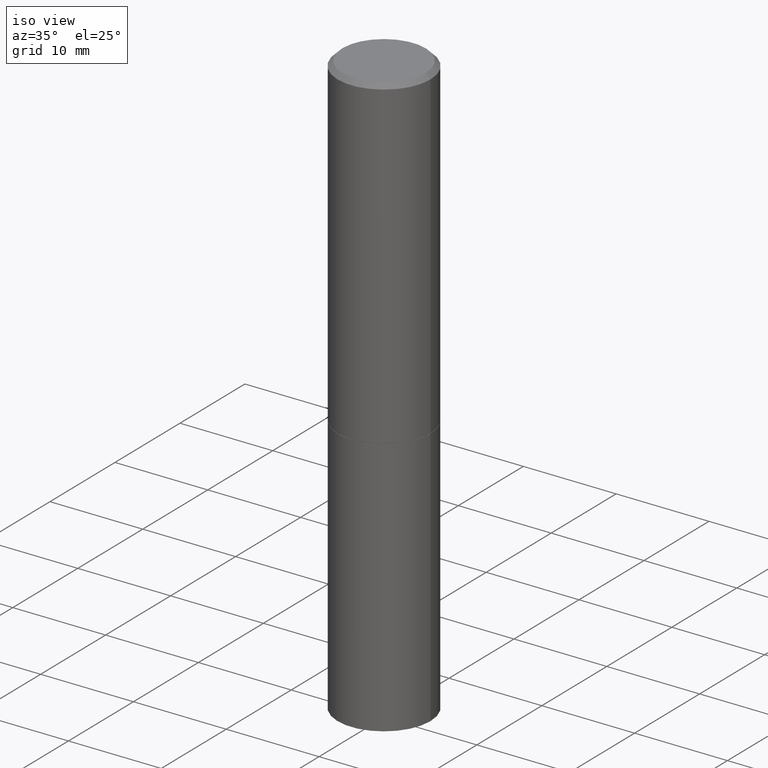
[diagram: clean part render]
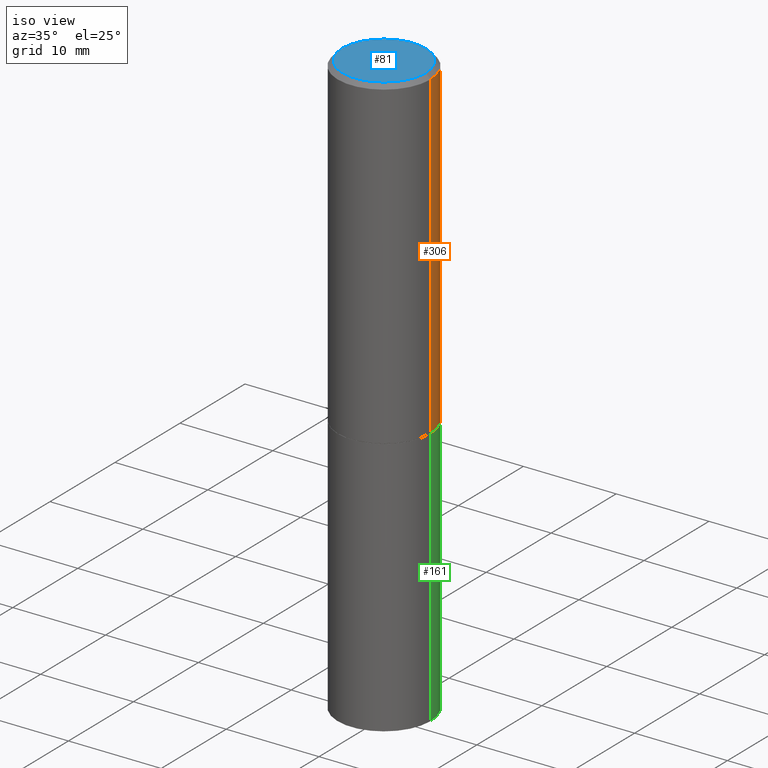
[diagram: same view with three faces highlighted in distinct colors, each labeled with its STEP entity id]
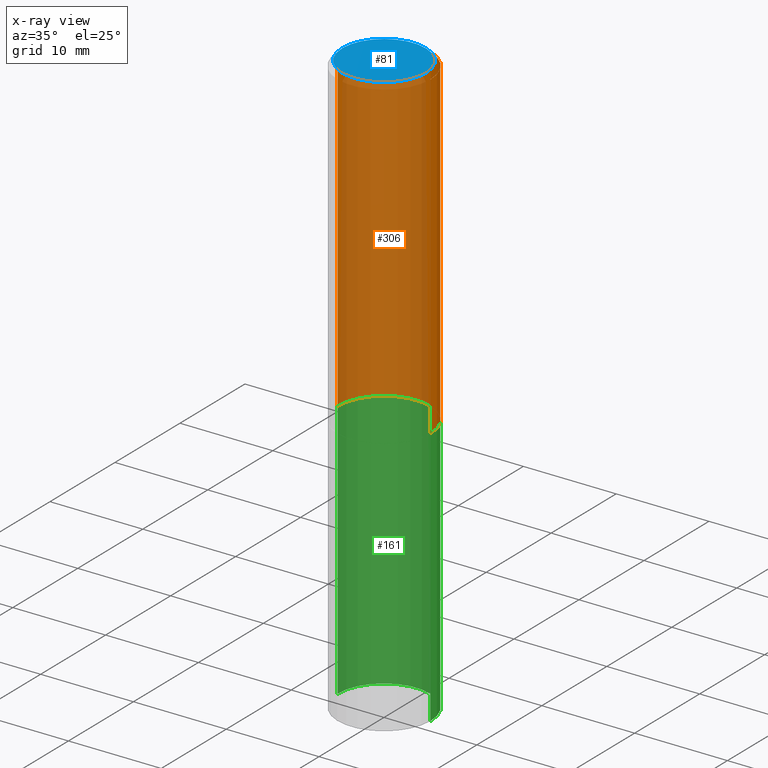
[diagram: x-ray of the same camera — body ghosted, the three highlighted faces saturated]
A machine part, iso view with three faces highlighted in distinct colors.
The next image is the same camera in x-ray (body ghosted, the three faces saturated) — at least one of them is partly hidden behind the body in this view.
Their STEP definitions:

[orange] entity #306 — the highlighted cylindrical surface (partial cylindrical patch) has radius 5 mm, axis along (-0, 0, 1).
#9 = CARTESIAN_POINT ( 'NONE',  ( 4.890937612370283668E-31, -6.982962677686305168E-17, -0.02000000000000004205 ) ) ;
#14 = VECTOR ( 'NONE', #312, 39.37007874015748143 ) ;
#31 = DIRECTION ( 'NONE',  ( -2.445468806185136597E-29, 3.491481338843145583E-15, 1.000000000000000000 ) ) ;
#43 = EDGE_LOOP ( 'NONE', ( #177, #55, #242, #354 ) ) ;
#48 = DIRECTION ( 'NONE',  ( 1.000000000000000000, -6.982962677686266711E-15, 0.000000000000000000 ) ) ;
#54 = CIRCLE ( 'NONE', #109, 0.1968499999999999417 ) ;
#55 = ORIENTED_EDGE ( 'NONE', *, *, #301, .T. ) ;
#67 = EDGE_CURVE ( 'NONE', #298, #74, #54, .T. ) ;
#69 = VECTOR ( 'NONE', #72, 39.37007874015748143 ) ;
#72 = DIRECTION ( 'NONE',  ( -2.445468806185136877E-29, 3.491481338843145188E-15, 1.000000000000000000 ) ) ;
#74 = VERTEX_POINT ( 'NONE', #352 ) ;
#109 = AXIS2_PLACEMENT_3D ( 'NONE', #275, #131, #350 ) ;
#118 = DIRECTION ( 'NONE',  ( -2.445468806185136597E-29, 3.491481338843145583E-15, 1.000000000000000000 ) ) ;
#131 = DIRECTION ( 'NONE',  ( -2.445468806185136597E-29, 3.491481338843145583E-15, 1.000000000000000000 ) ) ;
#135 = EDGE_CURVE ( 'NONE', #192, #332, #168, .T. ) ;
#146 = EDGE_CURVE ( 'NONE', #298, #192, #283, .T. ) ;
#168 = CIRCLE ( 'NONE', #185, 0.1968499999999997752 ) ;
#171 = FACE_OUTER_BOUND ( 'NONE', #43, .T. ) ;
#177 = ORIENTED_EDGE ( 'NONE', *, *, #67, .T. ) ;
#178 = CARTESIAN_POINT ( 'NONE',  ( 0.1968499999999998307, -1.374596203102540425E-15, 9.598753983154291049E-30 ) ) ;
#185 = AXIS2_PLACEMENT_3D ( 'NONE', #9, #31, #48 ) ;
#192 = VERTEX_POINT ( 'NONE', #313 ) ;
#201 = AXIS2_PLACEMENT_3D ( 'NONE', #365, #118, #263 ) ;
#242 = ORIENTED_EDGE ( 'NONE', *, *, #135, .F. ) ;
#243 = CARTESIAN_POINT ( 'NONE',  ( -0.1968499999999998307, 1.398703375343756013E-15, -9.682923725166775270E-30 ) ) ;
#258 = CYLINDRICAL_SURFACE ( 'NONE', #201, 0.1968499999999998307 ) ;
#263 = DIRECTION ( 'NONE',  ( 1.000000000000000000, -6.982962677686266711E-15, 4.876176775795935793E-29 ) ) ;
#275 = CARTESIAN_POINT ( 'NONE',  ( 3.367165999236314681E-29, -4.807420655453126643E-15, -1.376900000000000013 ) ) ;
#283 = LINE ( 'NONE', #178, #69 ) ;
#286 = CARTESIAN_POINT ( 'NONE',  ( 0.1968499999999999417, -6.182016858555667463E-15, -1.376900000000000013 ) ) ;
#298 = VERTEX_POINT ( 'NONE', #286 ) ;
#301 = EDGE_CURVE ( 'NONE', #74, #332, #320, .T. ) ;
#306 = ADVANCED_FACE ( 'NONE', ( #171 ), #258, .T. ) ;
#312 = DIRECTION ( 'NONE',  ( -2.445468806185136877E-29, 3.491481338843145188E-15, 1.000000000000000000 ) ) ;
#313 = CARTESIAN_POINT ( 'NONE',  ( 0.1968499999999997752, -1.420318657638187544E-15, -0.02000000000000004205 ) ) ;
#320 = LINE ( 'NONE', #243, #14 ) ;
#332 = VERTEX_POINT ( 'NONE', #351 ) ;
#350 = DIRECTION ( 'NONE',  ( 1.000000000000000000, -6.982962677686265922E-15, 0.000000000000000000 ) ) ;
#351 = CARTESIAN_POINT ( 'NONE',  ( -0.1968499999999997752, 1.304766576325676930E-15, -0.02000000000000004205 ) ) ;
#352 = CARTESIAN_POINT ( 'NONE',  ( -0.1968499999999999417, -1.039921765771237577E-15, -1.376900000000000013 ) ) ;
#354 = ORIENTED_EDGE ( 'NONE', *, *, #146, .F. ) ;
#365 = CARTESIAN_POINT ( 'NONE',  ( 0.000000000000000000, 0.000000000000000000, 0.000000000000000000 ) ) ;

[blue] entity #81 — the highlighted planar face has unit normal (0, -0, -1).
#7 = EDGE_CURVE ( 'NONE', #239, #103, #52, .T. ) ;
#25 = PLANE ( 'NONE',  #364 ) ;
#38 = AXIS2_PLACEMENT_3D ( 'NONE', #287, #231, #341 ) ;
#52 = CIRCLE ( 'NONE', #83, 0.1768499999999997851 ) ;
#76 = FACE_OUTER_BOUND ( 'NONE', #330, .T. ) ;
#79 = CARTESIAN_POINT ( 'NONE',  ( -0.1768499999999997851, 1.269851762937246069E-15, 4.268512490091652920E-18 ) ) ;
#81 = ADVANCED_FACE ( 'NONE', ( #76 ), #25, .F. ) ;
#83 = AXIS2_PLACEMENT_3D ( 'NONE', #249, #268, #328 ) ;
#103 = VERTEX_POINT ( 'NONE', #79 ) ;
#140 = CARTESIAN_POINT ( 'NONE',  ( 1.234936949548814617E-15, 0.1768499999999997851, -6.153342185293593634E-16 ) ) ;
#170 = ORIENTED_EDGE ( 'NONE', *, *, #7, .T. ) ;
#199 = CIRCLE ( 'NONE', #38, 0.1768499999999997851 ) ;
#224 = EDGE_CURVE ( 'NONE', #103, #239, #199, .T. ) ;
#229 = DIRECTION ( 'NONE',  ( 2.438088387897960049E-29, -3.491481338843145188E-15, -1.000000000000000000 ) ) ;
#231 = DIRECTION ( 'NONE',  ( -2.445468806185136597E-29, 3.491481338843145583E-15, 1.000000000000000000 ) ) ;
#239 = VERTEX_POINT ( 'NONE', #289 ) ;
#249 = CARTESIAN_POINT ( 'NONE',  ( -1.043851414335219820E-46, 1.490343170380447200E-32, 4.268512490100411279E-18 ) ) ;
#257 = ORIENTED_EDGE ( 'NONE', *, *, #224, .T. ) ;
#268 = DIRECTION ( 'NONE',  ( -2.445468806185136597E-29, 3.491481338843145583E-15, 1.000000000000000000 ) ) ;
#279 = DIRECTION ( 'NONE',  ( -1.000000000000000000, 6.982962677686265922E-15, -4.876176775795935793E-29 ) ) ;
#287 = CARTESIAN_POINT ( 'NONE',  ( -1.043851414335219820E-46, 1.490343170380447200E-32, 4.268512490100411279E-18 ) ) ;
#289 = CARTESIAN_POINT ( 'NONE',  ( 0.1768499999999997851, -1.316798864272040563E-15, 4.268512490109333727E-18 ) ) ;
#328 = DIRECTION ( 'NONE',  ( 1.000000000000000000, -6.982962677686266711E-15, 4.875932113059884174E-29 ) ) ;
#330 = EDGE_LOOP ( 'NONE', ( #257, #170 ) ) ;
#341 = DIRECTION ( 'NONE',  ( 1.000000000000000000, -6.982962677686266711E-15, 4.875932113059884174E-29 ) ) ;
#364 = AXIS2_PLACEMENT_3D ( 'NONE', #140, #229, #279 ) ;

[green] entity #161 — the highlighted cylindrical surface (partial cylindrical patch) has radius 5 mm, axis along (-0, 0, 1).
#3 = CARTESIAN_POINT ( 'NONE',  ( 0.1968500000000000250, -1.374596203102541608E-15, 9.598753983154300858E-30 ) ) ;
#12 = CARTESIAN_POINT ( 'NONE',  ( -0.1968500000000000250, 1.398703375343757393E-15, -9.682923725166783677E-30 ) ) ;
#16 = CARTESIAN_POINT ( 'NONE',  ( -0.1968500000000000250, -5.336713275418556283E-15, -2.480300000000000171 ) ) ;
#37 = CARTESIAN_POINT ( 'NONE',  ( 0.1968500000000000250, -1.003451736783519694E-14, -2.480300000000000171 ) ) ;
#46 = ORIENTED_EDGE ( 'NONE', *, *, #200, .F. ) ;
#50 = VERTEX_POINT ( 'NONE', #16 ) ;
#51 = EDGE_CURVE ( 'NONE', #50, #284, #272, .T. ) ;
#56 = CARTESIAN_POINT ( 'NONE',  ( 3.369611468042499724E-29, -4.810912136791970439E-15, -1.377900000000000125 ) ) ;
#58 = DIRECTION ( 'NONE',  ( 1.000000000000000000, -6.982962677686267499E-15, 0.000000000000000000 ) ) ;
#90 = LINE ( 'NONE', #3, #149 ) ;
#102 = CARTESIAN_POINT ( 'NONE',  ( 0.000000000000000000, 0.000000000000000000, 0.000000000000000000 ) ) ;
#105 = ORIENTED_EDGE ( 'NONE', *, *, #265, .F. ) ;
#107 = ORIENTED_EDGE ( 'NONE', *, *, #51, .T. ) ;
#117 = AXIS2_PLACEMENT_3D ( 'NONE', #56, #180, #58 ) ;
#119 = DIRECTION ( 'NONE',  ( 1.000000000000000000, -6.982962677686265922E-15, 4.876176775795935793E-29 ) ) ;
#123 = DIRECTION ( 'NONE',  ( 1.000000000000000000, -6.982962677686267499E-15, 0.000000000000000000 ) ) ;
#127 = DIRECTION ( 'NONE',  ( -2.445468806185136877E-29, 3.491481338843145188E-15, 1.000000000000000000 ) ) ;
#144 = FACE_OUTER_BOUND ( 'NONE', #277, .T. ) ;
#149 = VECTOR ( 'NONE', #366, 39.37007874015748143 ) ;
#152 = CARTESIAN_POINT ( 'NONE',  ( 0.1968500000000000250, -6.185508339894512836E-15, -1.377900000000000125 ) ) ;
#156 = DIRECTION ( 'NONE',  ( -2.445468806185136597E-29, 3.491481338843145583E-15, 1.000000000000000000 ) ) ;
#161 = ADVANCED_FACE ( 'NONE', ( #144 ), #319, .T. ) ;
#164 = ORIENTED_EDGE ( 'NONE', *, *, #203, .T. ) ;
#180 = DIRECTION ( 'NONE',  ( -2.445468806185136597E-29, 3.491481338843145583E-15, 1.000000000000000000 ) ) ;
#187 = VERTEX_POINT ( 'NONE', #152 ) ;
#200 = EDGE_CURVE ( 'NONE', #187, #284, #288, .T. ) ;
#203 = EDGE_CURVE ( 'NONE', #303, #50, #260, .T. ) ;
#226 = DIRECTION ( 'NONE',  ( -2.445468806185136597E-29, 3.491481338843145583E-15, 1.000000000000000000 ) ) ;
#234 = CARTESIAN_POINT ( 'NONE',  ( -0.1968500000000000250, -5.336713275418556283E-15, -1.377900000000000125 ) ) ;
#238 = CARTESIAN_POINT ( 'NONE',  ( 6.065496279980994755E-29, -8.659921164732655335E-15, -2.480300000000000171 ) ) ;
#260 = CIRCLE ( 'NONE', #357, 0.1968500000000000250 ) ;
#265 = EDGE_CURVE ( 'NONE', #303, #187, #90, .T. ) ;
#272 = LINE ( 'NONE', #12, #295 ) ;
#277 = EDGE_LOOP ( 'NONE', ( #164, #107, #46, #105 ) ) ;
#284 = VERTEX_POINT ( 'NONE', #234 ) ;
#288 = CIRCLE ( 'NONE', #117, 0.1968500000000000250 ) ;
#295 = VECTOR ( 'NONE', #127, 39.37007874015748143 ) ;
#303 = VERTEX_POINT ( 'NONE', #37 ) ;
#319 = CYLINDRICAL_SURFACE ( 'NONE', #338, 0.1968500000000000250 ) ;
#338 = AXIS2_PLACEMENT_3D ( 'NONE', #102, #226, #119 ) ;
#357 = AXIS2_PLACEMENT_3D ( 'NONE', #238, #156, #123 ) ;
#366 = DIRECTION ( 'NONE',  ( -2.445468806185136877E-29, 3.491481338843145188E-15, 1.000000000000000000 ) ) ;